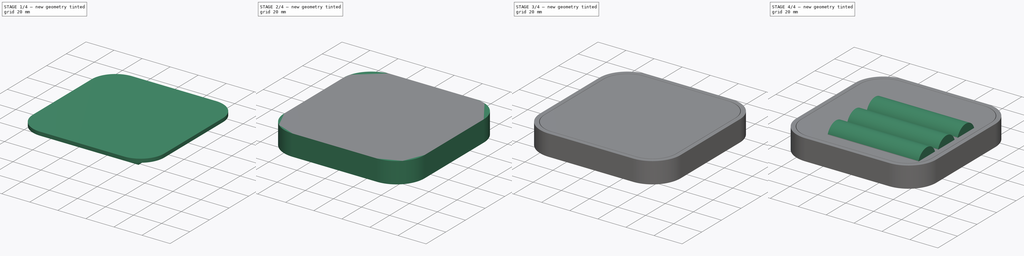
[diagram: build sequence overview — one tinted view per stage of 4, left to right]
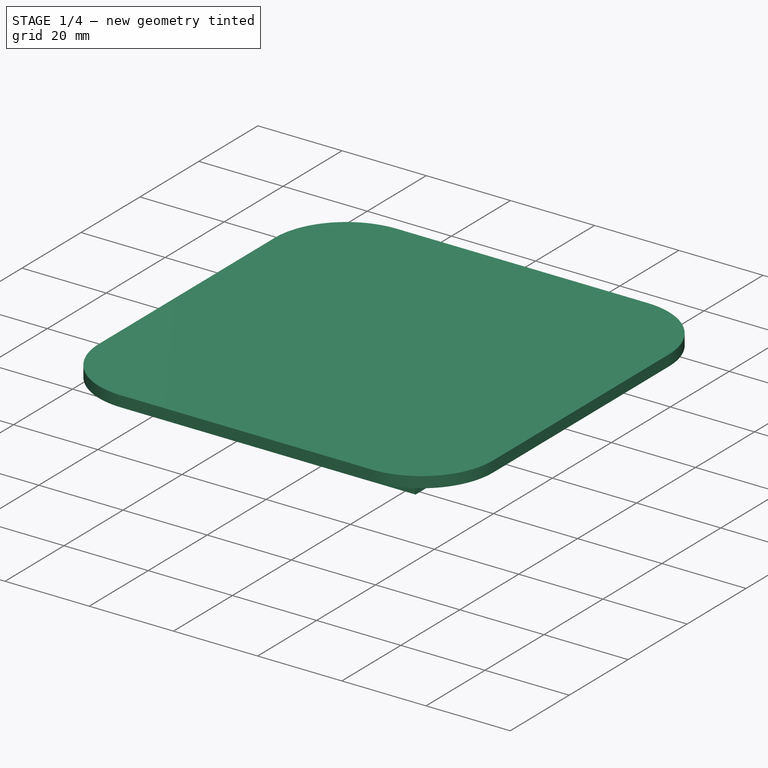
[diagram: stage 1 of 4 — iso view after this stage's code; geometry added in this stage tinted green]
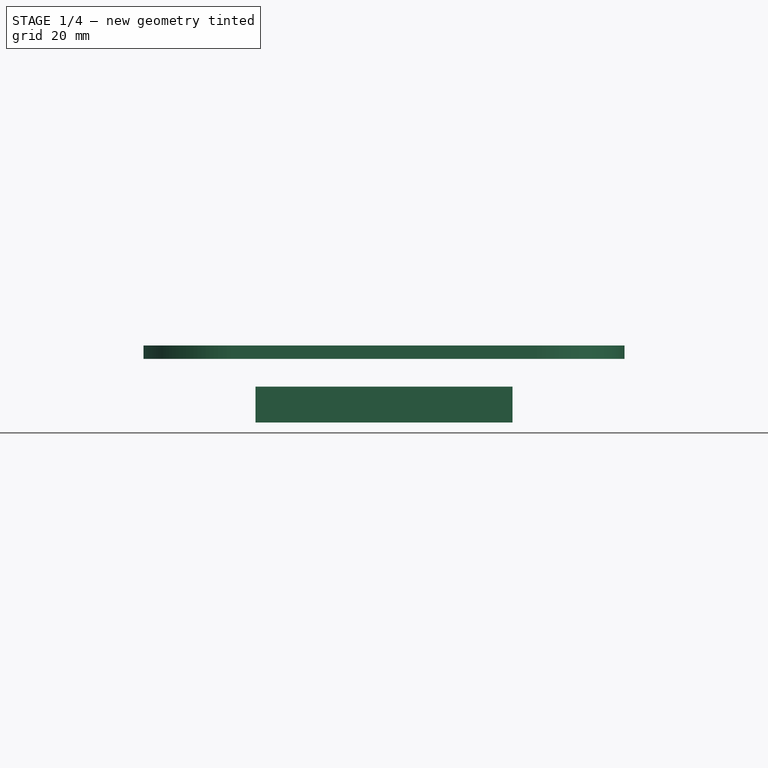
[diagram: stage 1 of 4 — front view after this stage's code; geometry added in this stage tinted green]
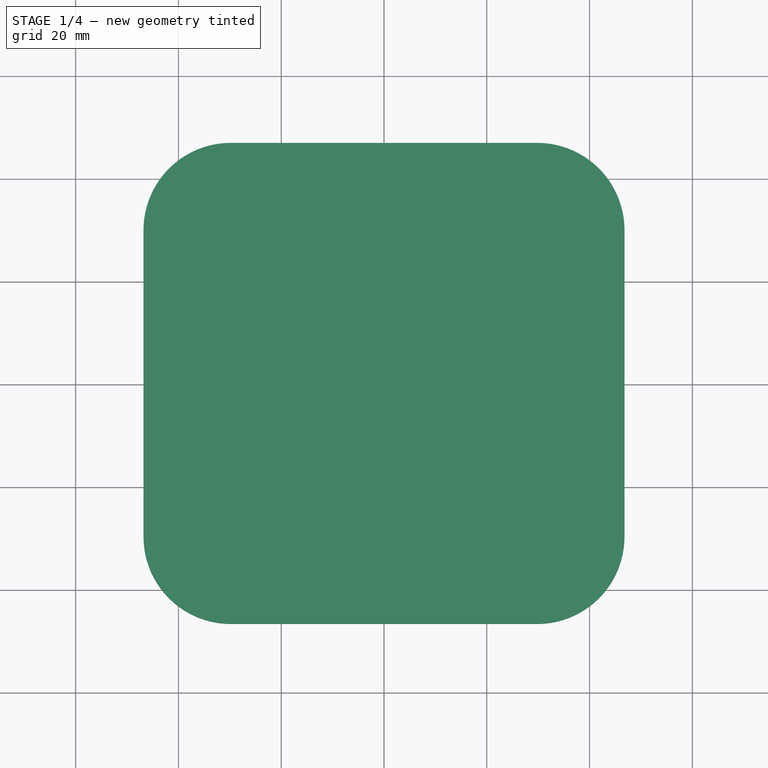
[diagram: stage 1 of 4 — top view after this stage's code; geometry added in this stage tinted green]
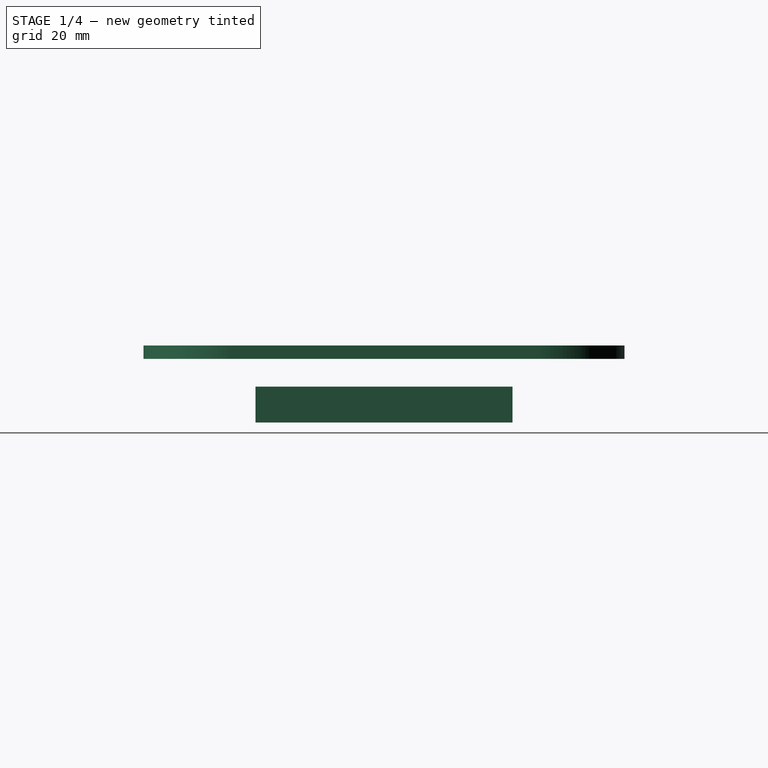
[diagram: stage 1 of 4 — right view after this stage's code; geometry added in this stage tinted green]
FCSTD DOCUMENT  (FreeCAD 0.17R13522 (Git))
Label: proto1
License: CreativeCommons Attribution-ShareAlike
LicenseURL: http://creativecommons.org/licenses/by-sa/4.0/
objects: Sketcher::SketchObject×9, PartDesign::Pocket×5, PartDesign::Pad×4, PartDesign::Body×4, App::Part×4, Part::Feature×2, Part::Cylinder×1, Part::FeaturePython×1, PartDesign::Fillet×1
note: 36 computed .brp shape members not serialized (recipe doc carries the construction recipe); baked Part::Feature solids carry a one-line shape summary decoded from their .brp

FEATURE [PartDesign::Body] Body
  Group = -> [Sketch,Pad,Fillet,Sketch001,Pocket,Sketch002,Pocket001,Sketch003,Pocket002,Sketch004,Pocket003]
  Origin = -> Origin001
  Tip = -> Pocket003
FEATURE [App::Part] Part
  Group = -> [Body]
  License = CC BY 3.0
  LicenseURL = http://creativecommons.org/licenses/by/3.0/
  Origin = -> Origin
FEATURE [Sketcher::SketchObject] Sketch005  label="thingy52-outline"
  MapMode = 5
  Support = -> [XY_Plane003]
  sketch-geometry (9):
    g0: LineSegment StartX=-13 StartY=25 StartZ=0 EndX=25 EndY=25 EndZ=0
    g1: LineSegment StartX=25 StartY=25 StartZ=0 EndX=25 EndY=-25 EndZ=0
    g2: LineSegment StartX=25 StartY=-25 StartZ=0 EndX=-25 EndY=-25 EndZ=0
    g3: LineSegment StartX=-25 StartY=-25 StartZ=0 EndX=-25 EndY=13 EndZ=0
    g4: LineSegment [constr] StartX=-25 StartY=13 StartZ=0 EndX=-25 EndY=25 EndZ=0
    g5: LineSegment [constr] StartX=-13 StartY=25 StartZ=0 EndX=-25 EndY=25 EndZ=0
    g6: LineSegment StartX=-25 StartY=13 StartZ=0 EndX=-17 EndY=13 EndZ=0
    g7: ArcOfCircle CenterX=-17 CenterY=17 CenterZ=0 NormalX=0 NormalY=0 NormalZ=1 AngleXU=0 Radius=4 StartAngle=4.71239 EndAngle=6.28319
    g8: LineSegment StartX=-13 StartY=17 StartZ=0 EndX=-13 EndY=25 EndZ=0
  constraints (25):
    c: Coincident(g0,g1)
    c: Coincident(g1,g2)
    c: Horizontal(g2)
    c: Coincident(g2,g3)
    c: Horizontal(g0)
    c: Vertical(g1)
    c: Vertical(g3)
    c: Coincident(g4,g3)
    c: Vertical(g4)
    c: Coincident(g5,g0)
    c: Coincident(g5,g4)
    c: Horizontal(g5)
    c: Coincident(g3,g6)
    c: Tangent(g6,g7) = -1.5708
    c: Tangent(g7,g8) = -1.5708
    c: Coincident(g8,g0)
    c: Horizontal(g6)
    c: Vertical(g8)
    c: DistanceX(g2,g2) = 50
    c: DistanceY(g1,g1) = 50
    c: Symmetric(g1,g2,g-2)
    c: Symmetric(g0,g1,g-1)
    c: DistanceX(g5,g5) = 12
    c: Equal(g4,g5)
    c: Radius(g7) = 4
FEATURE [PartDesign::Pad] Pad001
  Length = 7
  Length2 = 100
  Profile = -> Sketch005
  Type = 0
FEATURE [PartDesign::Body] Body001
  Group = -> [Sketch005,Pad001,Sketch006,Pocket004]
  Origin = -> Origin003
  Tip = -> Pocket004
FEATURE [App::Part] Part001
  Group = -> [Body001]
  License = CC BY 3.0
  LicenseURL = http://creativecommons.org/licenses/by/3.0/
  Origin = -> Origin002
  Placement = pos=(19,-7,3) rot=(0,0,-1;4.71239rad)
FEATURE [Sketcher::SketchObject] Sketch007
  MapMode = 5
  Support = -> [XY_Plane005]
  sketch-geometry (4):
    g0: LineSegment StartX=-17 StartY=24 StartZ=0 EndX=17 EndY=24 EndZ=0
    g1: LineSegment StartX=17 StartY=24 StartZ=0 EndX=17 EndY=-24 EndZ=0
    g2: LineSegment StartX=17 StartY=-24 StartZ=0 EndX=-17 EndY=-24 EndZ=0
    g3: LineSegment StartX=-17 StartY=-24 StartZ=0 EndX=-17 EndY=24 EndZ=0
  constraints (12):
    c: Coincident(g0,g1)
    c: Coincident(g1,g2)
    c: Coincident(g2,g3)
    c: Coincident(g3,g0)
    c: Horizontal(g0)
    c: Horizontal(g2)
    c: Vertical(g1)
    c: Vertical(g3)
    c: Symmetric(g1,g2,g-2)
    c: Symmetric(g2,g0,g-1)
    c: DistanceY(g3,g3) = 48
    c: DistanceX(g2,g2) = 34
FEATURE [PartDesign::Pad] Pad002
  Length = 7
  Length2 = 100
  Profile = -> Sketch007
  Type = 0
FEATURE [PartDesign::Body] Body002
  Group = -> [Sketch007,Pad002]
  Origin = -> Origin005
  Tip = -> Pad002
FEATURE [App::Part] Part002
  Group = -> [Body002]
  License = CC BY 3.0
  LicenseURL = http://creativecommons.org/licenses/by/3.0/
  Origin = -> Origin004
  Placement = pos=(-25,-4,3) rot=(0,0,1;0rad)
FEATURE [Sketcher::SketchObject] Sketch008  label="lid-outer"
  MapMode = 2
  Placement = pos=(0,0,15) rot=(0,0,1;0rad)
  sketch-geometry (12):
    g0: LineSegment StartX=-29.8 StartY=46.8 StartZ=0 EndX=29.8 EndY=46.8 EndZ=0
    g1: LineSegment StartX=46.8 StartY=29.8 StartZ=0 EndX=46.8 EndY=-29.8 EndZ=0
    g2: LineSegment StartX=29.8 StartY=-46.8 StartZ=0 EndX=-29.8 EndY=-46.8 EndZ=0
    g3: LineSegment StartX=-46.8 StartY=-29.8 StartZ=0 EndX=-46.8 EndY=29.8 EndZ=0
    g4: ArcOfCircle CenterX=29.8 CenterY=29.8 CenterZ=0 NormalX=0 NormalY=0 NormalZ=1 AngleXU=0 Radius=17 StartAngle=0 EndAngle=1.5708
    g5: ArcOfCircle CenterX=-29.8 CenterY=29.8 CenterZ=0 NormalX=0 NormalY=0 NormalZ=1 AngleXU=0 Radius=17 StartAngle=1.5708 EndAngle=3.14159
    g6: ArcOfCircle CenterX=-29.8 CenterY=-29.8 CenterZ=0 NormalX=0 NormalY=0 NormalZ=1 AngleXU=0 Radius=17 StartAngle=3.14159 EndAngle=4.71239
    g7: ArcOfCircle CenterX=29.8 CenterY=-29.8 CenterZ=0 NormalX=0 NormalY=0 NormalZ=1 AngleXU=0 Radius=17 StartAngle=4.71239 EndAngle=6.28319
    g8: LineSegment [constr] StartX=-46.8 StartY=29.8 StartZ=0 EndX=-50 EndY=29.8 EndZ=0
    g9: LineSegment [constr] StartX=-29.8 StartY=46.8 StartZ=0 EndX=-29.8 EndY=50 EndZ=0
    g10: LineSegment [constr] StartX=-29.8 StartY=50 StartZ=0 EndX=-50 EndY=50 EndZ=0
    g11: LineSegment [constr] StartX=-50 StartY=50 StartZ=0 EndX=-50 EndY=29.8 EndZ=0
  constraints (31):
    c: Horizontal(g0)
    c: Horizontal(g2)
    c: Vertical(g1)
    c: Vertical(g3)
    c: Tangent(g0,g4) = 1.5708
    c: Tangent(g1,g4) = 1.5708
    c: Tangent(g0,g5) = 1.5708
    c: Tangent(g3,g5) = 1.5708
    c: Tangent(g2,g6) = 1.5708
    c: Tangent(g3,g6) = 1.5708
    c: Tangent(g1,g7) = 1.5708
    c: Tangent(g2,g7) = 1.5708
    c: Equal(g4,g5)
    c: Equal(g5,g6)
    c: Equal(g6,g7)
    c: Symmetric(g0,g0,g-2)
    c: Symmetric(g3,g3,g-1)
    c: Coincident(g8,g3)
    c: Horizontal(g8)
    c: Coincident(g9,g0)
    c: Vertical(g9)
    c: Coincident(g10,g9)
    c: Horizontal(g10)
    c: Coincident(g11,g10)
    c: Coincident(g11,g8)
    c: Vertical(g11)
    c: DistanceX(g10) = -50
    c: DistanceY(g10) = 50
    c: DistanceX(g8,g8) = 3.2
    c: DistanceY(g9,g9) = 3.2
    c: Radius(g5) = 17
FEATURE [PartDesign::Pad] Pad003
  Length = 2.6
  Length2 = 100
  Placement = pos=(0,0,15) rot=(0,0,1;0rad)
  Profile = -> Sketch008
  Reversed = true
  Type = 0
FEATURE [PartDesign::Body] Body003
  Group = -> [Sketch008,Pad003]
  Origin = -> Origin007
  Tip = -> Pad003
FEATURE [App::Part] Part003
  Group = -> [Body003]
  License = CC BY 3.0
  LicenseURL = http://creativecommons.org/licenses/by/3.0/
  Origin = -> Origin006
FEATURE [Part::Feature] Pad003_cs001
  shape: bbox 93.6 x 93.6 x 3e-07 mm, 0 faces, 0 solids (baked)
FEATURE [Part::Feature] Pocket003_cs
  shape: bbox 100 x 100 x 3e-07 mm, 0 faces, 0 solids (baked)
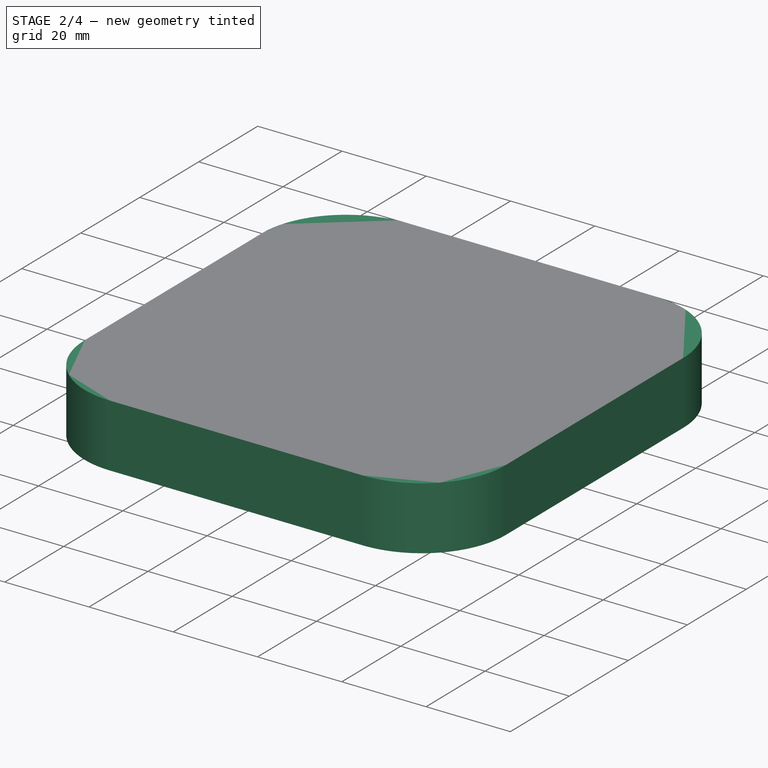
[diagram: stage 2 of 4 — iso view after this stage's code; geometry added in this stage tinted green]
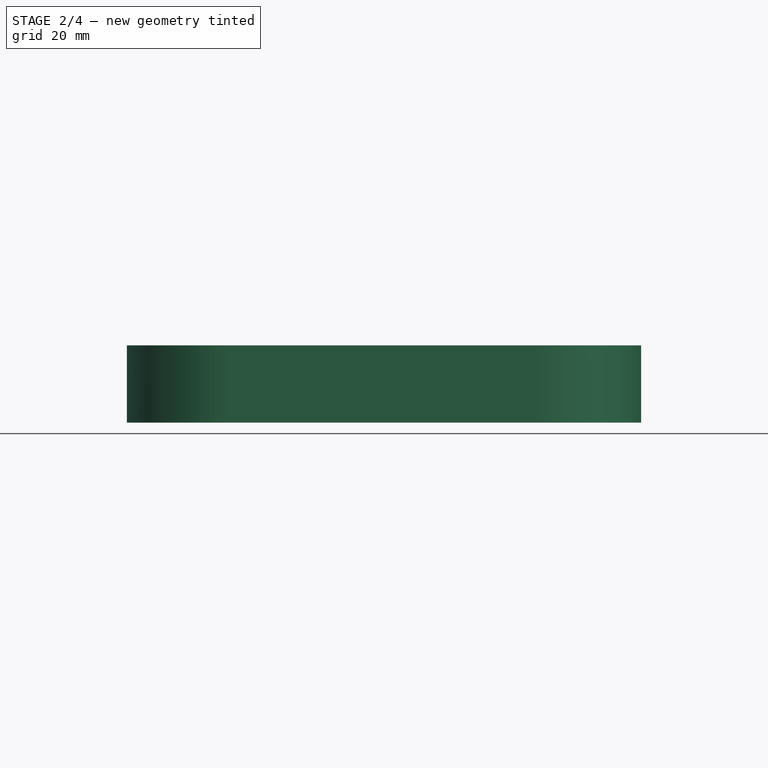
[diagram: stage 2 of 4 — front view after this stage's code; geometry added in this stage tinted green]
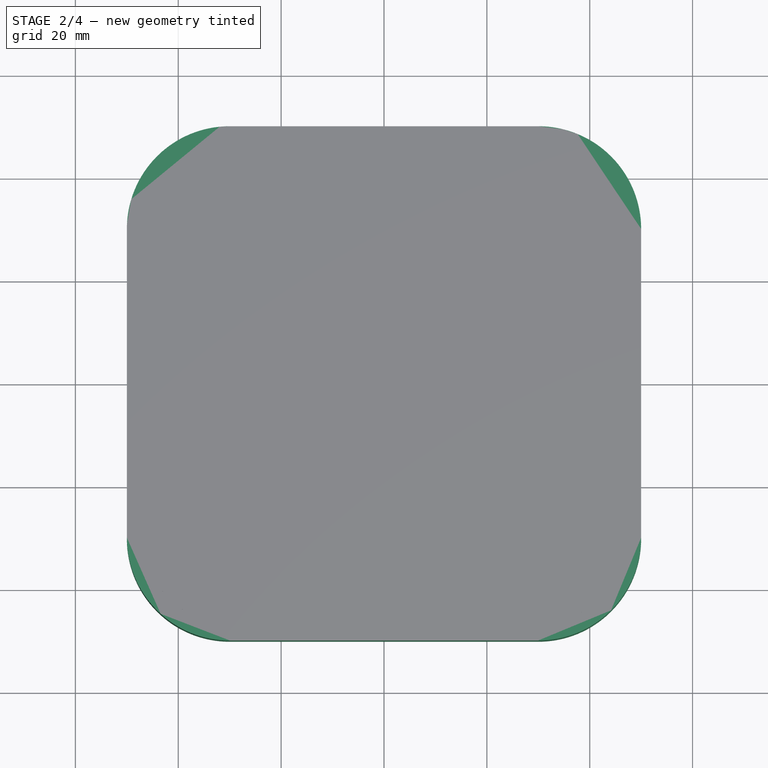
[diagram: stage 2 of 4 — top view after this stage's code; geometry added in this stage tinted green]
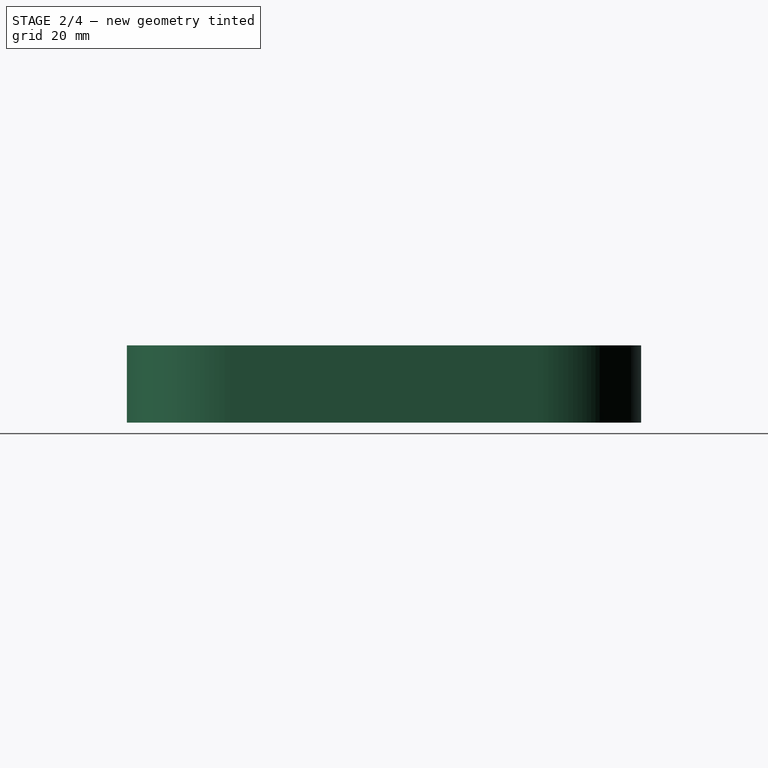
[diagram: stage 2 of 4 — right view after this stage's code; geometry added in this stage tinted green]
FEATURE [Sketcher::SketchObject] Sketch  label="base-outer"
  MapMode = 5
  Support = -> [XY_Plane001]
  sketch-geometry (4):
    g0: LineSegment StartX=-50 StartY=50 StartZ=0 EndX=50 EndY=50 EndZ=0
    g1: LineSegment StartX=50 StartY=50 StartZ=0 EndX=50 EndY=-50 EndZ=0
    g2: LineSegment StartX=50 StartY=-50 StartZ=0 EndX=-50 EndY=-50 EndZ=0
    g3: LineSegment StartX=-50 StartY=-50 StartZ=0 EndX=-50 EndY=50 EndZ=0
  constraints (12):
    c: Coincident(g0,g1)
    c: Coincident(g1,g2)
    c: Coincident(g2,g3)
    c: Coincident(g3,g0)
    c: Horizontal(g0)
    c: Horizontal(g2)
    c: Vertical(g1)
    c: Vertical(g3)
    c: Symmetric(g1,g2,g-2)
    c: Symmetric(g2,g0,g-1)
    c: DistanceX(g0,g0) = 100
    c: Equal(g3,g0)
FEATURE [PartDesign::Pad] Pad
  Length = 15
  Length2 = 100
  Profile = -> Sketch
  Type = 0
FEATURE [PartDesign::Fillet] Fillet
  Base = -> Pad [Edge1,Edge2,Edge5,Edge8]
  BaseFeature = -> Pad
  Radius = 20
FEATURE [Sketcher::SketchObject] Sketch006  label="thingy52-holes"
  ExternalGeometry = -> [Pad001]
  MapMode = 5
  Placement = pos=(0,0,7) rot=(0,0,1;0rad)
  Support = -> [Pad001]
  sketch-geometry (6):
    g0: Circle CenterX=8 CenterY=23 CenterZ=0 NormalX=0 NormalY=0 NormalZ=1 AngleXU=0 Radius=0.5
    g1: LineSegment [constr] StartX=8 StartY=23 StartZ=0 EndX=8 EndY=25 EndZ=0
    g2: Circle CenterX=-22 CenterY=-22 CenterZ=0 NormalX=0 NormalY=0 NormalZ=1 AngleXU=0 Radius=1.5
    g3: Circle CenterX=22 CenterY=-22 CenterZ=0 NormalX=0 NormalY=0 NormalZ=1 AngleXU=0 Radius=1.5
    g4: Circle CenterX=-11.8927 CenterY=11.3625 CenterZ=0 NormalX=0 NormalY=0 NormalZ=1 AngleXU=0 Radius=1.5
    g5: LineSegment [constr] StartX=22 StartY=-22 StartZ=0 EndX=-22 EndY=-22 EndZ=0
  constraints (15):
    c: Coincident(g1,g0)
    c: PointOnObject(g1,g-3)
    c: Vertical(g1)
    c: Radius(g0) = 0.5
    c: DistanceY(g1,g1) = 2
    c: DistanceX(g1,g-3) = 17
    c: Coincident(g5,g2)
    c: Horizontal(g5)
    c: Coincident(g5,g3)
    c: Equal(g3,g2)
    c: Equal(g2,g4)
    c: Radius(g4) = 1.5
    c: Symmetric(g2,g3,g-2)
    c: DistanceY(g-4,g3) = 3
    c: DistanceX(g5,g5) = 44
FEATURE [PartDesign::Pocket] Pocket004
  BaseFeature = -> Pad001
  Length = 5
  Length2 = 100
  Profile = -> Sketch006
  Type = 1
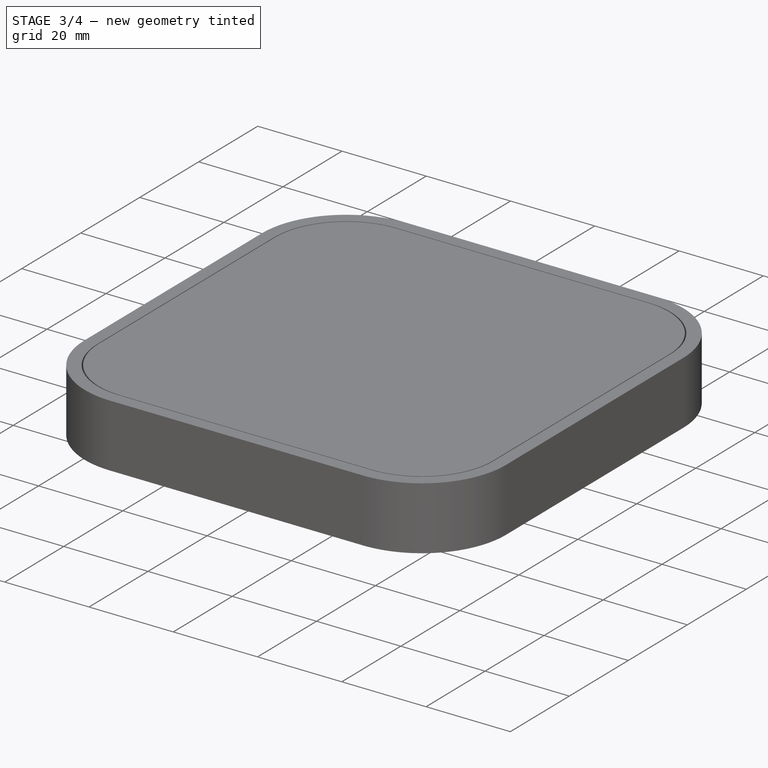
[diagram: stage 3 of 4 — iso view after this stage's code; geometry added in this stage tinted green]
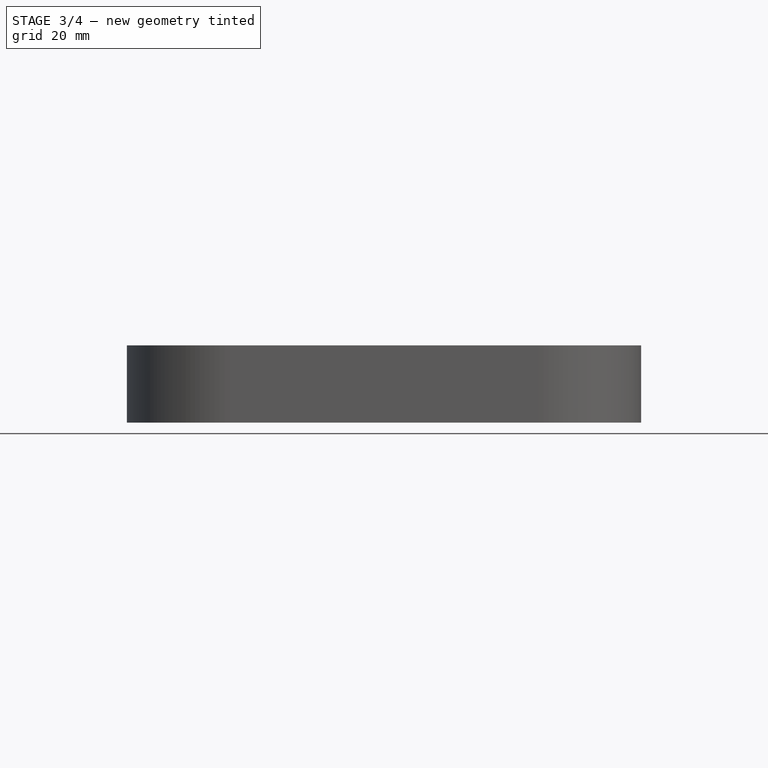
[diagram: stage 3 of 4 — front view after this stage's code; geometry added in this stage tinted green]
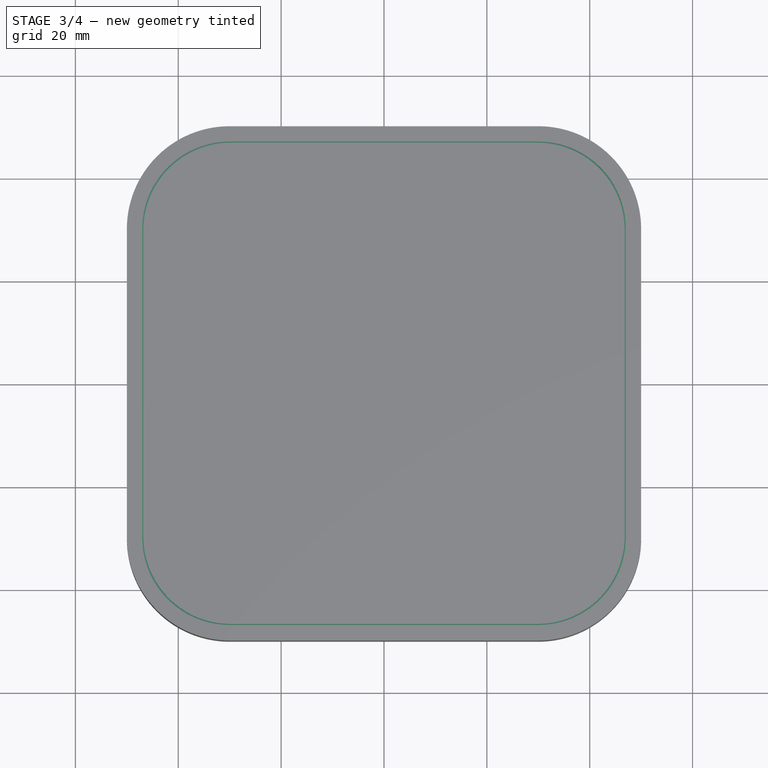
[diagram: stage 3 of 4 — top view after this stage's code; geometry added in this stage tinted green]
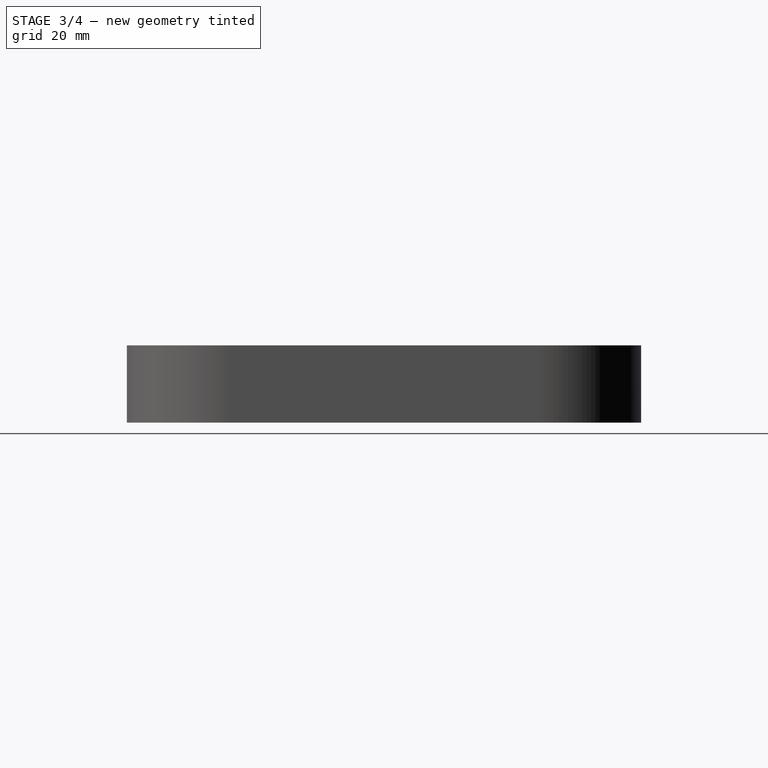
[diagram: stage 3 of 4 — right view after this stage's code; geometry added in this stage tinted green]
FEATURE [Sketcher::SketchObject] Sketch001  label="base-lidcountersink"
  MapMode = 5
  Placement = pos=(0,0,15) rot=(0,0,1;0rad)
  Support = -> [Fillet]
  sketch-geometry (12):
    g0: LineSegment StartX=-30 StartY=47 StartZ=0 EndX=30 EndY=47 EndZ=0
    g1: LineSegment StartX=47 StartY=30 StartZ=0 EndX=47 EndY=-30 EndZ=0
    g2: LineSegment StartX=30 StartY=-47 StartZ=0 EndX=-30 EndY=-47 EndZ=0
    g3: LineSegment StartX=-47 StartY=-30 StartZ=0 EndX=-47 EndY=30 EndZ=0
    g4: ArcOfCircle CenterX=30 CenterY=30 CenterZ=0 NormalX=0 NormalY=0 NormalZ=1 AngleXU=0 Radius=17 StartAngle=0 EndAngle=1.5708
    g5: ArcOfCircle CenterX=-30 CenterY=30 CenterZ=0 NormalX=0 NormalY=0 NormalZ=1 AngleXU=0 Radius=17 StartAngle=1.5708 EndAngle=3.14159
    g6: ArcOfCircle CenterX=-30 CenterY=-30 CenterZ=0 NormalX=0 NormalY=0 NormalZ=1 AngleXU=0 Radius=17 StartAngle=3.14159 EndAngle=4.71239
    g7: ArcOfCircle CenterX=30 CenterY=-30 CenterZ=0 NormalX=0 NormalY=0 NormalZ=1 AngleXU=0 Radius=17 StartAngle=4.71239 EndAngle=6.28319
    g8: LineSegment [constr] StartX=-47 StartY=30 StartZ=0 EndX=-50 EndY=30 EndZ=0
    g9: LineSegment [constr] StartX=-30 StartY=47 StartZ=0 EndX=-30 EndY=50 EndZ=0
    g10: LineSegment [constr] StartX=-30 StartY=50 StartZ=0 EndX=-50 EndY=50 EndZ=0
    g11: LineSegment [constr] StartX=-50 StartY=50 StartZ=0 EndX=-50 EndY=30 EndZ=0
  constraints (31):
    c: Horizontal(g0)
    c: Horizontal(g2)
    c: Vertical(g1)
    c: Vertical(g3)
    c: Tangent(g0,g4) = 1.5708
    c: Tangent(g1,g4) = 1.5708
    c: Tangent(g0,g5) = 1.5708
    c: Tangent(g3,g5) = 1.5708
    c: Tangent(g2,g6) = 1.5708
    c: Tangent(g3,g6) = 1.5708
    c: Tangent(g1,g7) = 1.5708
    c: Tangent(g2,g7) = 1.5708
    c: Equal(g4,g5)
    c: Equal(g5,g6)
    c: Equal(g6,g7)
    c: Symmetric(g0,g0,g-2)
    c: Symmetric(g3,g3,g-1)
    c: Coincident(g8,g3)
    c: Horizontal(g8)
    c: Coincident(g9,g0)
    c: Vertical(g9)
    c: Coincident(g10,g9)
    c: Horizontal(g10)
    c: Coincident(g11,g10)
    c: Coincident(g11,g8)
    c: Vertical(g11)
    c: DistanceX(g10) = -50
    c: DistanceY(g10) = 50
    c: DistanceX(g8,g8) = 3
    c: DistanceY(g9,g9) = 3
    c: Radius(g5) = 17
FEATURE [PartDesign::Pocket] Pocket
  BaseFeature = -> Fillet
  Length = 3
  Length2 = 100
  Profile = -> Sketch001
  Type = 0
FEATURE [Sketcher::SketchObject] Sketch002  label="base-inner"
  MapMode = 5
  Placement = pos=(0,0,12) rot=(0,0,1;0rad)
  Support = -> [Pocket]
  sketch-geometry (18):
    g0: LineSegment StartX=35 StartY=45 StartZ=0 EndX=35 EndY=35 EndZ=0
    g1: LineSegment StartX=35 StartY=35 StartZ=0 EndX=45 EndY=35 EndZ=0
    g2: LineSegment StartX=45 StartY=35 StartZ=0 EndX=45 EndY=-30 EndZ=0
    g3: LineSegment StartX=30 StartY=-45 StartZ=0 EndX=-35 EndY=-45 EndZ=0
    g4: LineSegment StartX=-35 StartY=-45 StartZ=0 EndX=-35 EndY=-35 EndZ=0
    g5: LineSegment StartX=-35 StartY=-35 StartZ=0 EndX=-45 EndY=-35 EndZ=0
    g6: LineSegment StartX=-45 StartY=-35 StartZ=0 EndX=-45 EndY=30 EndZ=0
    g7: LineSegment StartX=-30 StartY=45 StartZ=0 EndX=35 EndY=45 EndZ=0
    g8: LineSegment [constr] StartX=45 StartY=35 StartZ=0 EndX=45 EndY=45 EndZ=0
    g9: LineSegment [constr] StartX=35 StartY=45 StartZ=0 EndX=45 EndY=45 EndZ=0
    g10: LineSegment [constr] StartX=-45 StartY=-35 StartZ=0 EndX=-45 EndY=-45 EndZ=0
    g11: LineSegment [constr] StartX=-45 StartY=-45 StartZ=0 EndX=-35 EndY=-45 EndZ=0
    g12: ArcOfCircle CenterX=-30 CenterY=30 CenterZ=0 NormalX=0 NormalY=0 NormalZ=1 AngleXU=0 Radius=15 StartAngle=1.5708 EndAngle=3.14159
    g13: ArcOfCircle CenterX=30 CenterY=-30 CenterZ=0 NormalX=0 NormalY=0 NormalZ=1 AngleXU=0 Radius=15 StartAngle=4.71239 EndAngle=6.28319
    g14: LineSegment [constr] StartX=45 StartY=-30 StartZ=0 EndX=45 EndY=-45 EndZ=0
    g15: LineSegment [constr] StartX=30 StartY=-45 StartZ=0 EndX=45 EndY=-45 EndZ=0
    g16: LineSegment [constr] StartX=-45 StartY=30 StartZ=0 EndX=-45 EndY=45 EndZ=0
    g17: LineSegment [constr] StartX=-30 StartY=45 StartZ=0 EndX=-45 EndY=45 EndZ=0
  constraints (47):
    c: Coincident(g0,g1)
    c: Horizontal(g1)
    c: Coincident(g1,g2)
    c: Horizontal(g3)
    c: Coincident(g3,g4)
    c: Vertical(g4)
    c: Coincident(g4,g5)
    c: Horizontal(g5)
    c: Coincident(g5,g6)
    c: Vertical(g6)
    c: Coincident(g7,g0)
    c: Horizontal(g7)
    c: Vertical(g0)
    c: Equal(g5,g1)
    c: Equal(g4,g0)
    c: Equal(g2,g6)
    c: Coincident(g8,g1)
    c: Coincident(g9,g0)
    c: Coincident(g9,g8)
    c: Horizontal(g9)
    c: Vertical(g8)
    c: Coincident(g5,g10)
    c: Coincident(g10,g11)
    c: Coincident(g11,g3)
    c: Vertical(g10)
    c: Horizontal(g11)
    c: Tangent(g6,g12) = 1.5708
    c: Tangent(g7,g12) = 1.5708
    c: Tangent(g2,g13) = 1.5708
    c: Tangent(g3,g13) = 1.5708
    c: DistanceX(g5,g5) = 10
    c: DistanceY(g4,g4) = 10
    c: Coincident(g14,g2)
    c: Vertical(g14)
    c: Coincident(g15,g3)
    c: Coincident(g15,g14)
    c: Horizontal(g15)
    c: Vertical(g16)
    c: Coincident(g17,g16)
    c: Tangent(g17,g12)
    c: Coincident(g16,g6)
    c: Coincident(g17,g7)
    c: Symmetric(g14,g8,g-1)
    c: Radius(g12) = 15
    c: Symmetric(g16,g8,g-2)
    c: DistanceY(g16) = 45
    c: DistanceX(g16) = -45
FEATURE [PartDesign::Pocket] Pocket001
  BaseFeature = -> Pocket
  Length = 10
  Length2 = 100
  Profile = -> Sketch002
  Type = 0
  expr: Length = Pad.Length - 2mm - Pocket.Length
FEATURE [Sketcher::SketchObject] Sketch003  label="base-mountholes"
  MapMode = 5
  Placement = pos=(0,0,12) rot=(0,0,1;0rad)
  Support = -> [Pocket001]
  sketch-geometry (10):
    g0: LineSegment [constr] StartX=-40 StartY=40 StartZ=0 EndX=40 EndY=40 EndZ=0
    g1: LineSegment [constr] StartX=40 StartY=40 StartZ=0 EndX=40 EndY=-40 EndZ=0
    g2: LineSegment [constr] StartX=40 StartY=-40 StartZ=0 EndX=-40 EndY=-40 EndZ=0
    g3: LineSegment [constr] StartX=-40 StartY=-40 StartZ=0 EndX=-40 EndY=40 EndZ=0
    g4: Circle CenterX=-40 CenterY=-40 CenterZ=0 NormalX=0 NormalY=0 NormalZ=1 AngleXU=0 Radius=2.2
    g5: Circle CenterX=40 CenterY=40 CenterZ=0 NormalX=0 NormalY=0 NormalZ=1 AngleXU=0 Radius=2.2
    g6: LineSegment [constr] StartX=40 StartY=40 StartZ=0 EndX=50 EndY=40 EndZ=0
    g7: LineSegment [constr] StartX=40 StartY=40 StartZ=0 EndX=40 EndY=50 EndZ=0
    g8: LineSegment [constr] StartX=40 StartY=50 StartZ=0 EndX=50 EndY=50 EndZ=0
    g9: LineSegment [constr] StartX=50 StartY=50 StartZ=0 EndX=50 EndY=40 EndZ=0
  constraints (27):
    c: Coincident(g0,g1)
    c: Coincident(g1,g2)
    c: Coincident(g2,g3)
    c: Coincident(g3,g0)
    c: Horizontal(g0)
    c: Horizontal(g2)
    c: Vertical(g1)
    c: Vertical(g3)
    c: Symmetric(g1,g0,g-1)
    c: Symmetric(g0,g0,g-2)
    c: Coincident(g4,g2)
    c: Coincident(g5,g0)
    c: Equal(g5,g4)
    c: Radius(g5) = 2.2
    c: Coincident(g6,g0)
    c: Horizontal(g6)
    c: Vertical(g7)
    c: Coincident(g7,g8)
    c: Horizontal(g8)
    c: Coincident(g8,g9)
    c: Coincident(g9,g6)
    c: Vertical(g9)
    c: Coincident(g7,g0)
    c: DistanceX(g8) = 50
    c: DistanceY(g8) = 50
    c: DistanceX(g6,g6) = 10
    c: DistanceY(g7,g7) = 10
FEATURE [PartDesign::Pocket] Pocket002
  BaseFeature = -> Pocket001
  Length = 5
  Length2 = 100
  Profile = -> Sketch003
  Type = 1
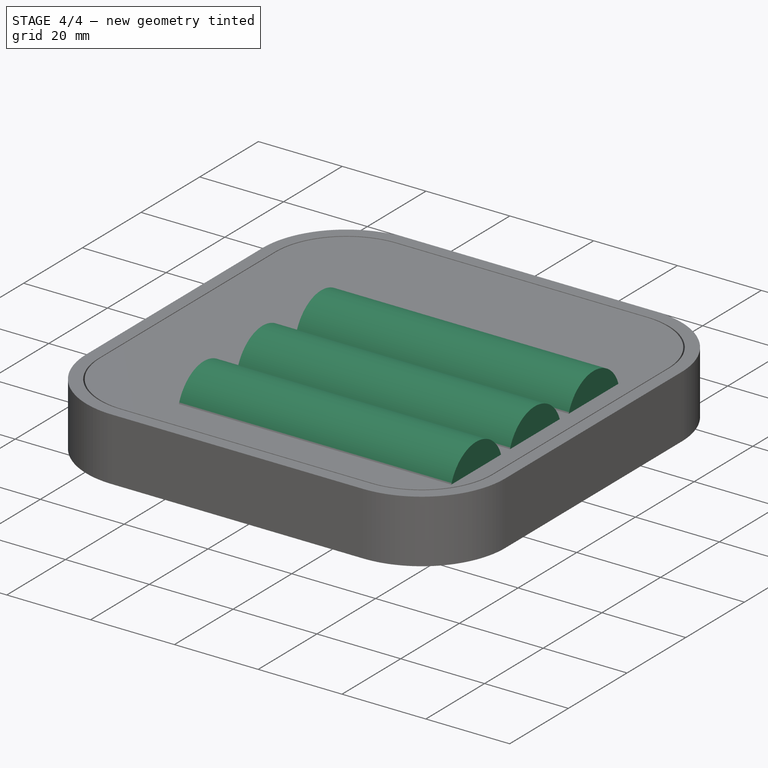
[diagram: stage 4 of 4 — iso view after this stage's code; geometry added in this stage tinted green]
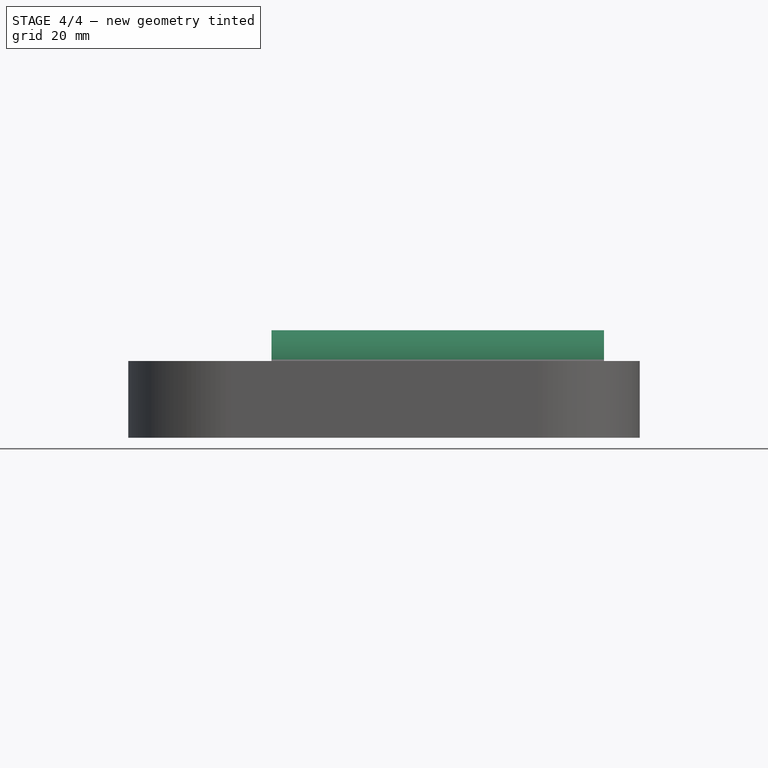
[diagram: stage 4 of 4 — front view after this stage's code; geometry added in this stage tinted green]
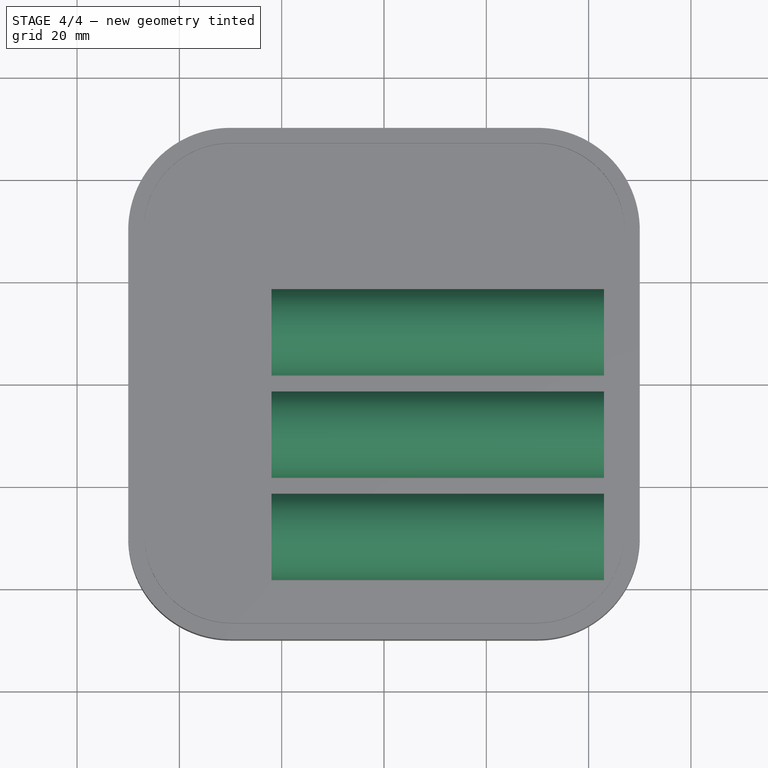
[diagram: stage 4 of 4 — top view after this stage's code; geometry added in this stage tinted green]
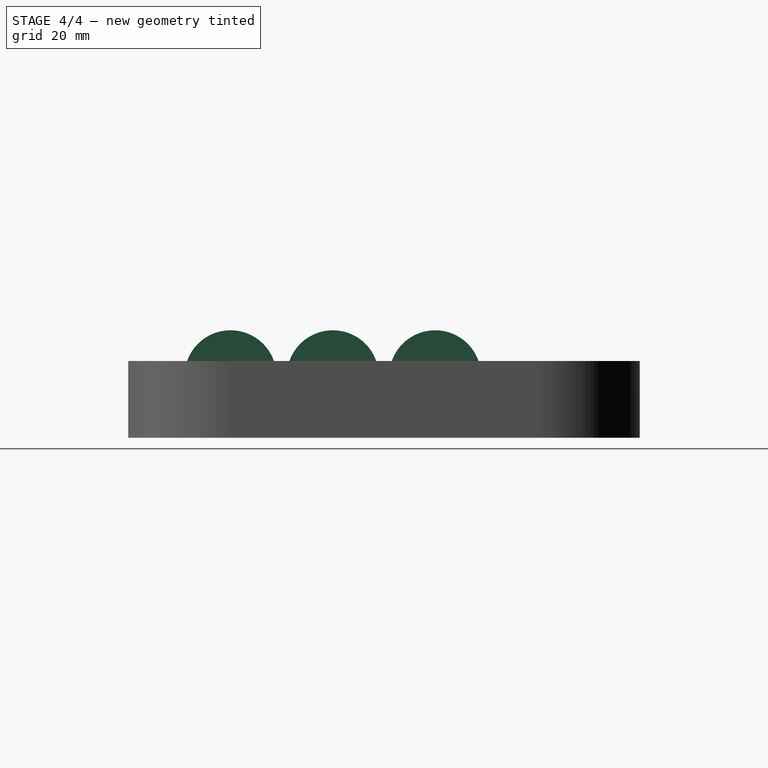
[diagram: stage 4 of 4 — right view after this stage's code; geometry added in this stage tinted green]
FEATURE [Part::Cylinder] Cylinder  label="batt-18650"
  Angle = 360
  AttacherType = Attacher::AttachEngine3D
  Height = 65
  Placement = pos=(-22,10,12) rot=(0,1,0;1.5708rad)
  Radius = 9
FEATURE [Part::FeaturePython] Array  label="batteries"  # Draft array (typed FeaturePython)
  Angle = 360
  ArrayType = 0
  Axis = (0,0,1)
  Base = -> Cylinder
  Center = (0,0,0)
  Fuse = false
  IntervalAxis = (0,0,0)
  IntervalX = (1,0,0)
  IntervalY = (0,-20,0)
  IntervalZ = (0,0,0)
  NumberPolar = 1
  NumberX = 1
  NumberY = 3
  NumberZ = 1
FEATURE [Sketcher::SketchObject] Sketch004  label="base-michole"
  MapMode = 5
  Placement = pos=(0,0,2) rot=(0,0,1;0rad)
  Support = -> [Pocket002]
  sketch-geometry (1):
    g0: Circle CenterX=0 CenterY=0 CenterZ=0 NormalX=0 NormalY=0 NormalZ=1 AngleXU=0 Radius=5
  constraints (2):
    c: Coincident(g0,g-1)
    c: Radius(g0) = 5
FEATURE [PartDesign::Pocket] Pocket003
  BaseFeature = -> Pocket002
  Length = 5
  Length2 = 100
  Profile = -> Sketch004
  Type = 1
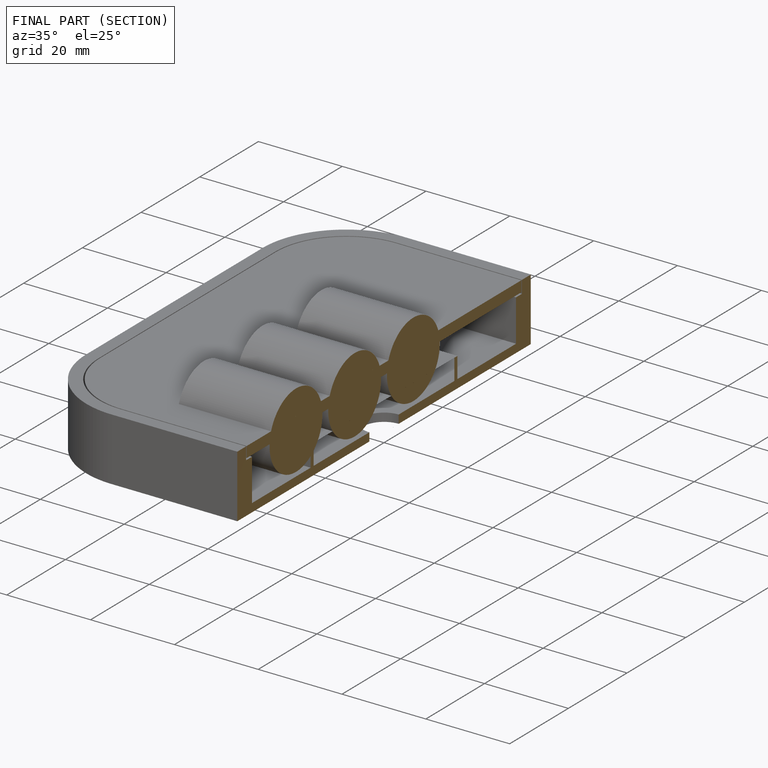
[diagram: finished part — half-section view (interior)]
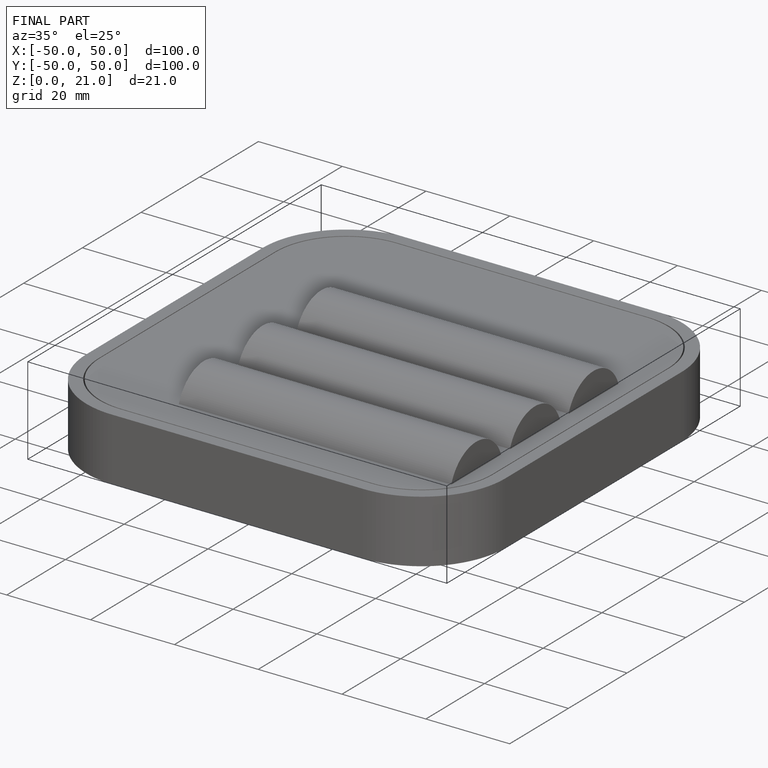
[diagram: finished part — iso view with bounding-box wireframe]
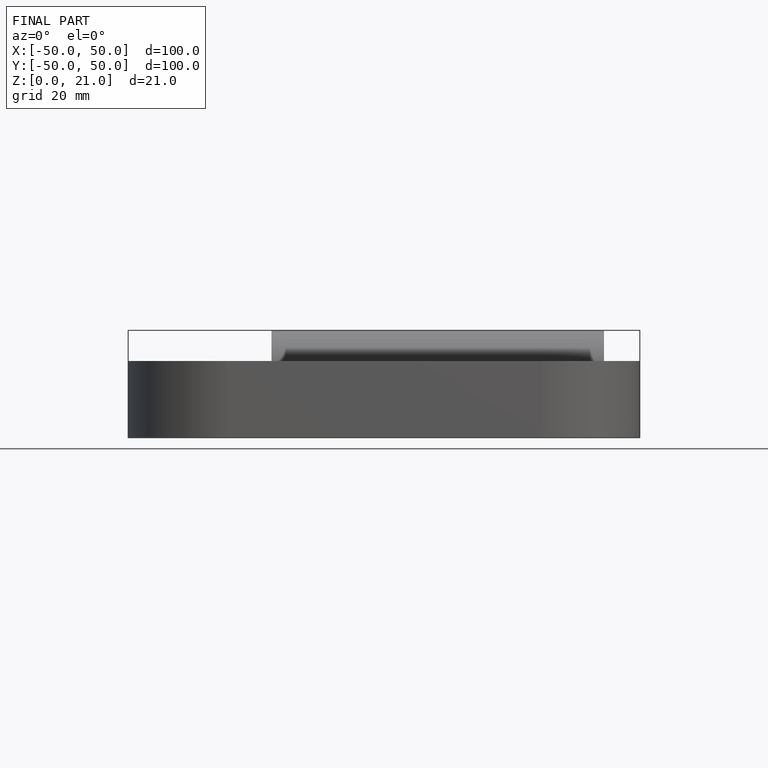
[diagram: finished part — front view with bounding-box wireframe]
